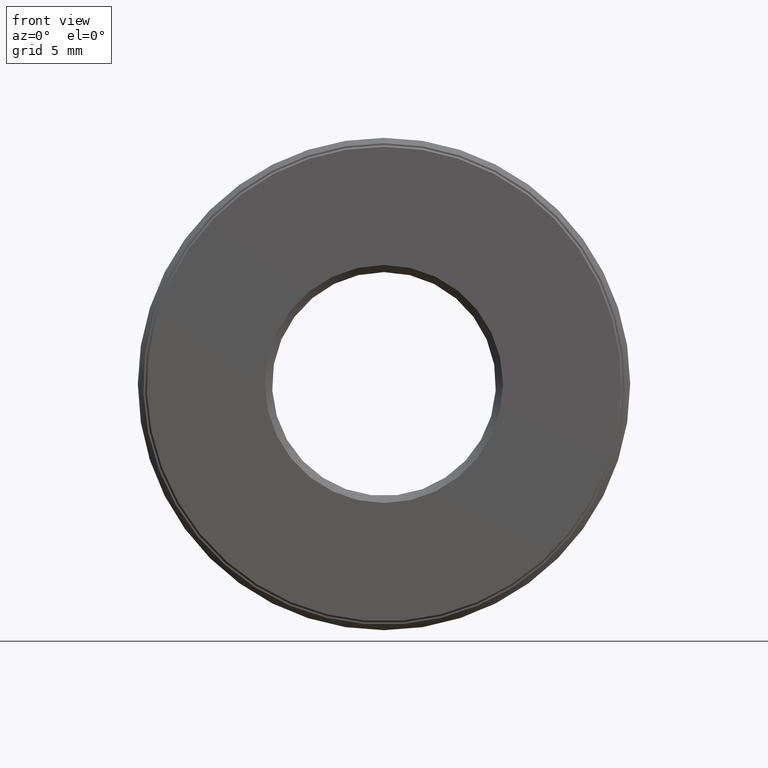
[diagram: clean part render]
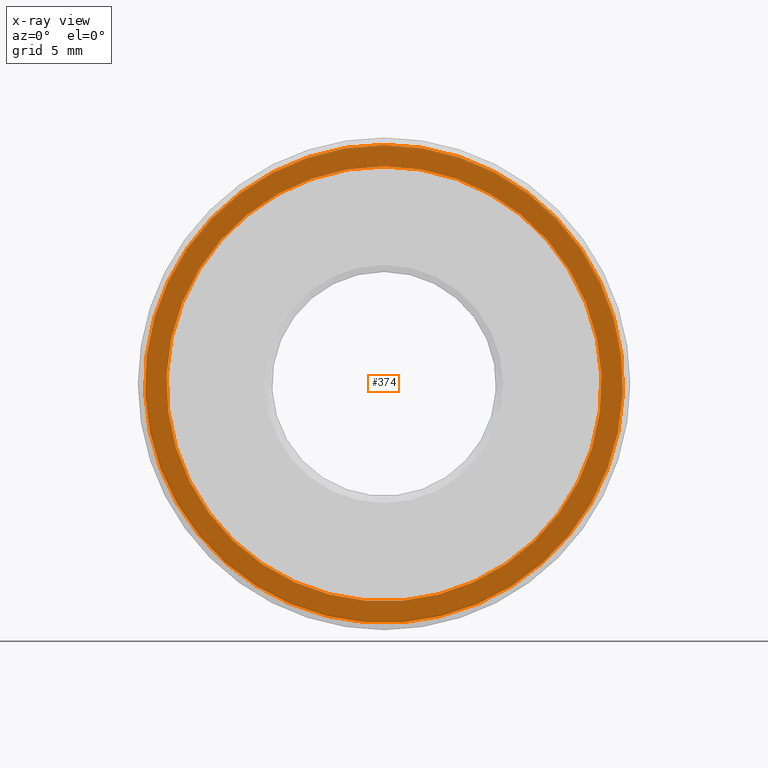
[diagram: x-ray — body ghosted, one internal face saturated and labeled with its STEP entity id]
A machine part, front view, then the same camera in x-ray: the body is ghosted and one INTERNAL B-rep face — a face not visible from any outside direction — is saturated and labeled: STEP entity #374.
In plain terms, the highlighted planar face has unit normal (-0, 1, 0).
Its self-contained STEP definition (entity closure, byte-faithful):
#11 = CARTESIAN_POINT ( 'NONE',  ( 0.0000000000000000000, 0.5900000000000000800, 0.0000000000000000000 ) ) ;
#13 = EDGE_LOOP ( 'NONE', ( #309 ) ) ;
#20 = VERTEX_POINT ( 'NONE', #249 ) ;
#132 = CARTESIAN_POINT ( 'NONE',  ( 0.0000000000000000000, 0.5900000000000000800, 0.0000000000000000000 ) ) ;
#134 = CARTESIAN_POINT ( 'NONE',  ( 0.0000000000000000000, 0.5900000000000000800, 0.0000000000000000000 ) ) ;
#165 = EDGE_CURVE ( 'NONE', #20, #20, #283, .T. ) ;
#183 = DIRECTION ( 'NONE',  ( -0.0000000000000000000, 1.000000000000000000, 0.0000000000000000000 ) ) ;
#227 = DIRECTION ( 'NONE',  ( 0.0000000000000000000, 0.0000000000000000000, 1.000000000000000000 ) ) ;
#231 = FACE_BOUND ( 'NONE', #13, .T. ) ;
#234 = AXIS2_PLACEMENT_3D ( 'NONE', #11, #240, #509 ) ;
#240 = DIRECTION ( 'NONE',  ( -0.0000000000000000000, 1.000000000000000000, -0.0000000000000000000 ) ) ;
#249 = CARTESIAN_POINT ( 'NONE',  ( 0.0000000000000000000, 0.5900000000000000800, 0.6674999999999998700 ) ) ;
#264 = CIRCLE ( 'NONE', #234, 0.6075000000000000400 ) ;
#283 = CIRCLE ( 'NONE', #454, 0.6674999999999998700 ) ;
#306 = CARTESIAN_POINT ( 'NONE',  ( 0.0000000000000000000, 0.5900000000000000800, 0.6075000000000000400 ) ) ;
#309 = ORIENTED_EDGE ( 'NONE', *, *, #480, .T. ) ;
#310 = FACE_OUTER_BOUND ( 'NONE', #464, .T. ) ;
#326 = PLANE ( 'NONE',  #337 ) ;
#337 = AXIS2_PLACEMENT_3D ( 'NONE', #132, #183, #227 ) ;
#374 = ADVANCED_FACE ( 'NONE', ( #310, #231 ), #326, .F. ) ;
#454 = AXIS2_PLACEMENT_3D ( 'NONE', #134, #506, #595 ) ;
#464 = EDGE_LOOP ( 'NONE', ( #530 ) ) ;
#480 = EDGE_CURVE ( 'NONE', #523, #523, #264, .T. ) ;
#506 = DIRECTION ( 'NONE',  ( -0.0000000000000000000, 1.000000000000000000, -0.0000000000000000000 ) ) ;
#509 = DIRECTION ( 'NONE',  ( 0.0000000000000000000, 0.0000000000000000000, 1.000000000000000000 ) ) ;
#523 = VERTEX_POINT ( 'NONE', #306 ) ;
#530 = ORIENTED_EDGE ( 'NONE', *, *, #165, .F. ) ;
#595 = DIRECTION ( 'NONE',  ( 0.0000000000000000000, 0.0000000000000000000, 1.000000000000000000 ) ) ;